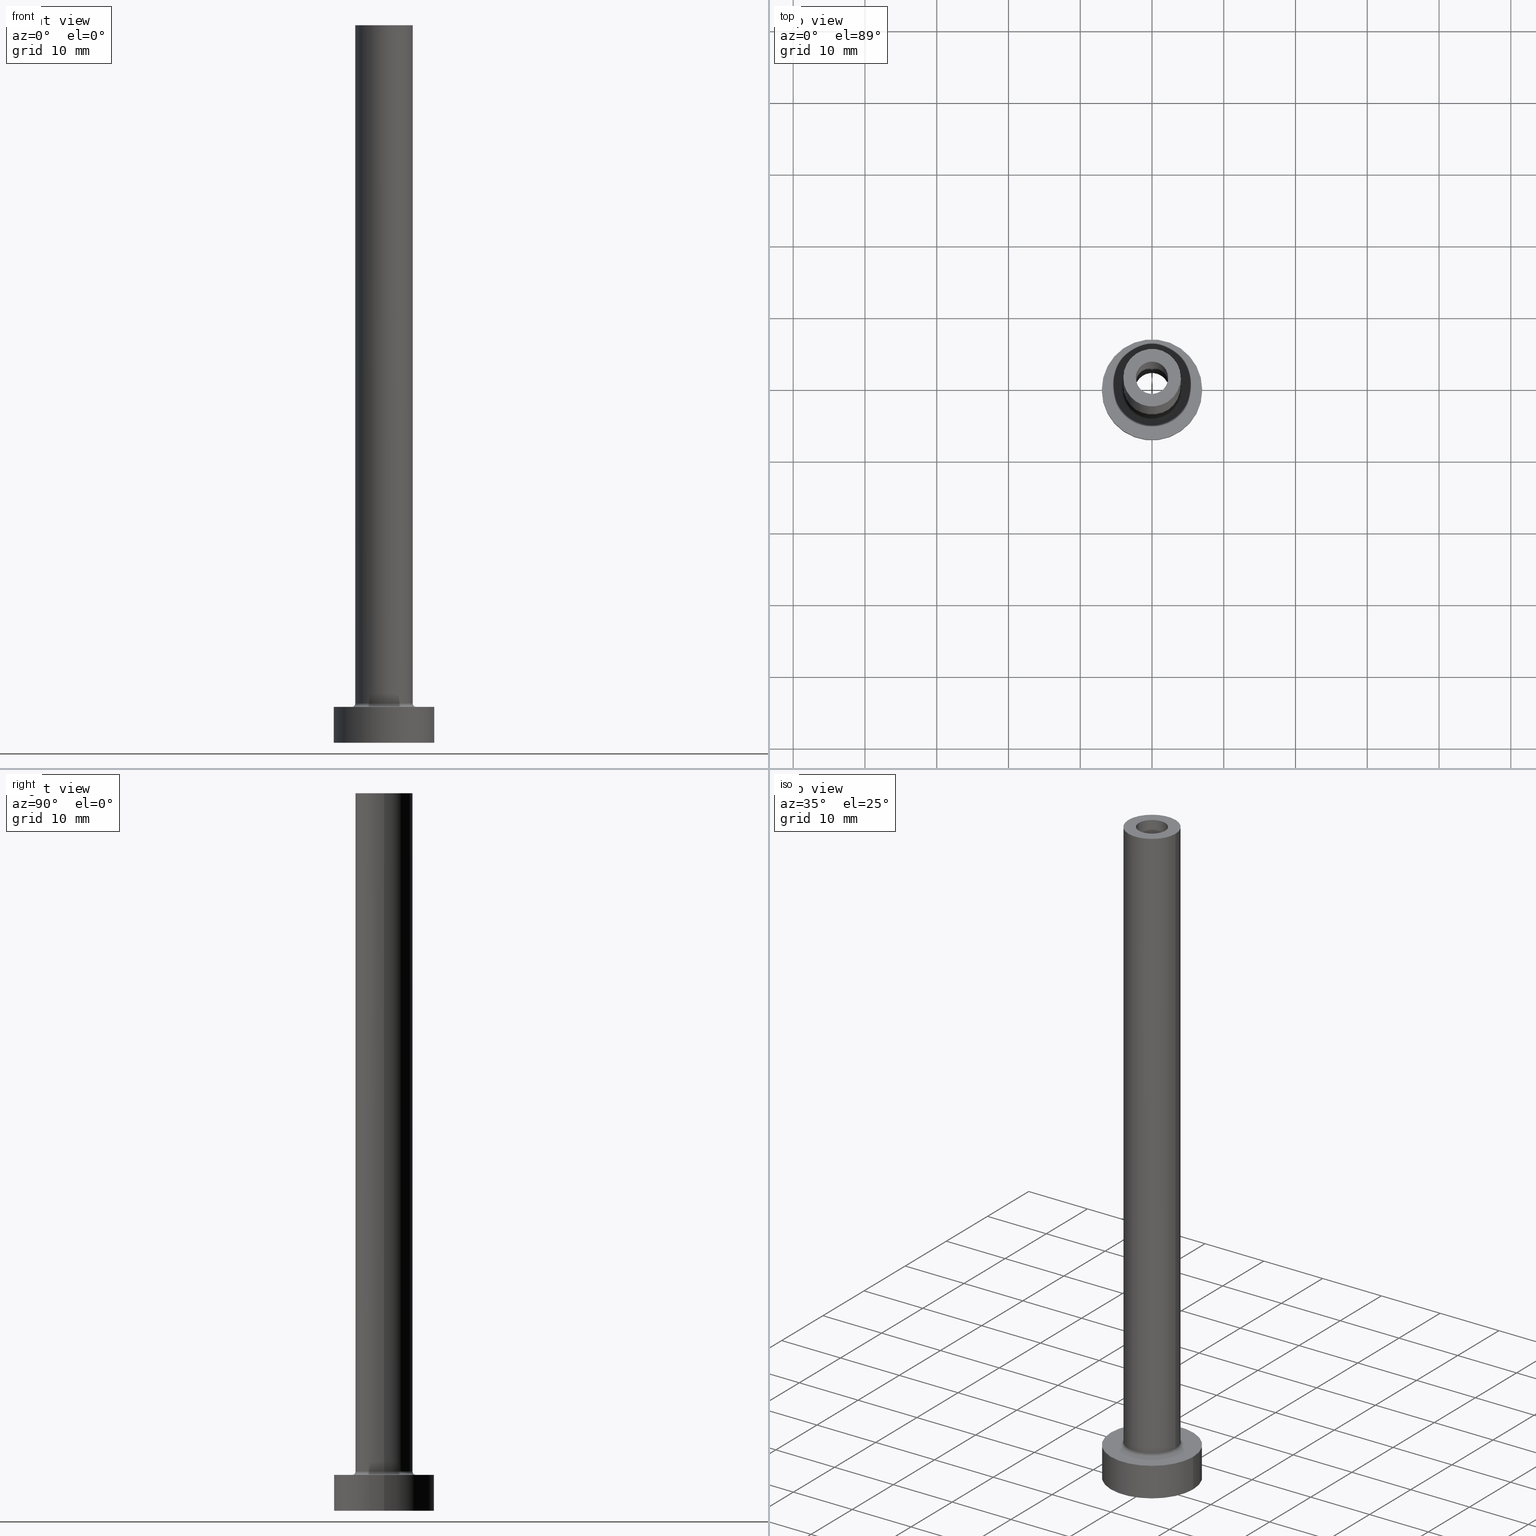
[diagram: canonical four-view strip — front | top / right | iso, engineering-drawing reading convention]
A machine part, canonical four-view strip (front | top / right | iso — engineering-drawing reading convention). The complete STEP part file that produces these views, byte-faithful:
ISO-10303-21;
HEADER;
FILE_DESCRIPTION (( 'STEP AP203' ),
    '1' );
FILE_NAME ('b994.STEP',
    '2023-02-13T11:05:56',
    ( '' ),
    ( '' ),
    'SwSTEP 2.0',
    'SolidWorks 2019',
    '' );
FILE_SCHEMA (( 'CONFIG_CONTROL_DESIGN' ));
ENDSEC;

DATA;
#1 = CYLINDRICAL_SURFACE ( 'NONE', #307, 4.000000000000000000 ) ;
#2 = ORIENTED_EDGE ( 'NONE', *, *, #439, .F. ) ;
#3 = CIRCLE ( 'NONE', #44, 0.5000000000000004441 ) ;
#4 = DIRECTION ( 'NONE',  ( -1.000000000000000000, 0.000000000000000000, 0.000000000000000000 ) ) ;
#5 = CC_DESIGN_APPROVAL ( #46, ( #11 ) ) ;
#6 = CALENDAR_DATE ( 2023, 13, 2 ) ;
#7 = DIRECTION ( 'NONE',  ( 0.000000000000000000, 0.000000000000000000, -1.000000000000000000 ) ) ;
#8 = ORIENTED_EDGE ( 'NONE', *, *, #27, .T. ) ;
#9 = DATE_TIME_ROLE ( 'classification_date' ) ;
#10 = CARTESIAN_POINT ( 'NONE',  ( 0.000000000000000000, 0.000000000000000000, 100.0000000000000000 ) ) ;
#11 = PRODUCT_DEFINITION ( 'NEZN�M�', '', #418, #207 ) ;
#12 = DIRECTION ( 'NONE',  ( 1.000000000000000000, 0.000000000000000000, 0.000000000000000000 ) ) ;
#13 = CIRCLE ( 'NONE', #191, 2.399999999999999911 ) ;
#14 = CARTESIAN_POINT ( 'NONE',  ( 0.000000000000000000, 0.000000000000000000, 5.500000000000005329 ) ) ;
#15 = ORIENTED_EDGE ( 'NONE', *, *, #272, .T. ) ;
#16 = DIRECTION ( 'NONE',  ( 0.000000000000000000, 0.000000000000000000, 1.000000000000000000 ) ) ;
#17 = CARTESIAN_POINT ( 'NONE',  ( 0.000000000000000000, 0.000000000000000000, 0.000000000000000000 ) ) ;
#18 = LOCAL_TIME ( 12, 5, 56.00000000000000000, #325 ) ;
#19 = CARTESIAN_POINT ( 'NONE',  ( -2.250000000000000000, 0.000000000000000000, 100.0000000000000000 ) ) ;
#20 = DIRECTION ( 'NONE',  ( 1.000000000000000000, 0.000000000000000000, 0.000000000000000000 ) ) ;
#21 = EDGE_CURVE ( 'NONE', #62, #374, #340, .T. ) ;
#22 = PRODUCT_RELATED_PRODUCT_CATEGORY ( 'detail', '', ( #294 ) ) ;
#23 = CLOSED_SHELL ( 'NONE', ( #332, #110, #88, #174, #35, #269, #54, #417, #101, #141, #412, #197, #91, #233 ) ) ;
#24 = DIRECTION ( 'NONE',  ( 1.000000000000000000, 0.000000000000000000, -0.000000000000000000 ) ) ;
#25 = VECTOR ( 'NONE', #257, 1000.000000000000000 ) ;
#26 = APPROVAL_ROLE ( '' ) ;
#27 = EDGE_CURVE ( 'NONE', #387, #179, #53, .T. ) ;
#28 = CIRCLE ( 'NONE', #68, 4.000000000000000000 ) ;
#29 = DIRECTION ( 'NONE',  ( 1.000000000000000000, 0.000000000000000000, -0.000000000000000000 ) ) ;
#30 = EDGE_CURVE ( 'NONE', #374, #204, #95, .T. ) ;
#31 = DIRECTION ( 'NONE',  ( 0.000000000000000000, 0.000000000000000000, 1.000000000000000000 ) ) ;
#32 = ORIENTED_EDGE ( 'NONE', *, *, #220, .F. ) ;
#33 = DIRECTION ( 'NONE',  ( -0.000000000000000000, -0.000000000000000000, -1.000000000000000000 ) ) ;
#34 = ORIENTED_EDGE ( 'NONE', *, *, #296, .F. ) ;
#35 = ADVANCED_FACE ( 'NONE', ( #309 ), #134, .T. ) ;
#36 = CARTESIAN_POINT ( 'NONE',  ( 0.000000000000000000, 0.000000000000000000, 61.78822509939085705 ) ) ;
#37 = CIRCLE ( 'NONE', #162, 2.399999999999999911 ) ;
#38 = EDGE_LOOP ( 'NONE', ( #434, #153, #367, #431 ) ) ;
#39 = DIRECTION ( 'NONE',  ( 0.000000000000000000, 0.000000000000000000, 1.000000000000000000 ) ) ;
#40 = ORIENTED_EDGE ( 'NONE', *, *, #357, .T. ) ;
#41 = LINE ( 'NONE', #155, #81 ) ;
#42 = EDGE_LOOP ( 'NONE', ( #347, #218, #15, #359 ) ) ;
#43 = CARTESIAN_POINT ( 'NONE',  ( 2.250000000000000000, 2.755455298081543792E-16, 100.0000000000000000 ) ) ;
#44 = AXIS2_PLACEMENT_3D ( 'NONE', #289, #182, #223 ) ;
#45 = LINE ( 'NONE', #43, #128 ) ;
#46 = APPROVAL ( #142, 'NEUR�EN�' ) ;
#47 = DIRECTION ( 'NONE',  ( 0.000000000000000000, 0.000000000000000000, 1.000000000000000000 ) ) ;
#48 = DIRECTION ( 'NONE',  ( -1.000000000000000000, 0.000000000000000000, 0.000000000000000000 ) ) ;
#49 = EDGE_CURVE ( 'NONE', #323, #456, #178, .T. ) ;
#50 = DIRECTION ( 'NONE',  ( 1.000000000000000000, 0.000000000000000000, 0.000000000000000000 ) ) ;
#51 = ORIENTED_EDGE ( 'NONE', *, *, #77, .T. ) ;
#52 = DIRECTION ( 'NONE',  ( 1.000000000000000000, 0.000000000000000000, 0.000000000000000000 ) ) ;
#53 = CIRCLE ( 'NONE', #321, 7.000000000000000000 ) ;
#54 = ADVANCED_FACE ( 'NONE', ( #415, #393 ), #143, .T. ) ;
#55 = CARTESIAN_POINT ( 'NONE',  ( 0.000000000000000000, 0.000000000000000000, 100.0000000000000000 ) ) ;
#56 = EDGE_CURVE ( 'NONE', #160, #135, #194, .T. ) ;
#57 = AXIS2_PLACEMENT_3D ( 'NONE', #213, #355, #452 ) ;
#58 = DIRECTION ( 'NONE',  ( 1.000000000000000000, 0.000000000000000000, -0.000000000000000000 ) ) ;
#59 = ORIENTED_EDGE ( 'NONE', *, *, #291, .T. ) ;
#60 = DATE_AND_TIME ( #380, #249 ) ;
#61 = CARTESIAN_POINT ( 'NONE',  ( 0.000000000000000000, 0.000000000000000000, 5.500000000000005329 ) ) ;
#62 = VERTEX_POINT ( 'NONE', #426 ) ;
#63 = PERSON_AND_ORGANIZATION_ROLE ( 'creator' ) ;
#64 = PLANE ( 'NONE',  #201 ) ;
#65 = EDGE_LOOP ( 'NONE', ( #394, #71, #105, #373 ) ) ;
#66 = CC_DESIGN_APPROVAL ( #365, ( #418 ) ) ;
#67 = DIRECTION ( 'NONE',  ( 0.000000000000000000, 0.000000000000000000, 1.000000000000000000 ) ) ;
#68 = AXIS2_PLACEMENT_3D ( 'NONE', #326, #217, #154 ) ;
#69 = ORIENTED_EDGE ( 'NONE', *, *, #296, .T. ) ;
#70 = DIRECTION ( 'NONE',  ( 0.000000000000000000, 0.000000000000000000, 1.000000000000000000 ) ) ;
#71 = ORIENTED_EDGE ( 'NONE', *, *, #402, .T. ) ;
#72 = EDGE_CURVE ( 'NONE', #238, #312, #398, .T. ) ;
#73 = CARTESIAN_POINT ( 'NONE',  ( 2.399999999999999911, 2.939152317953647106E-16, 0.000000000000000000 ) ) ;
#74 = DATE_AND_TIME ( #6, #343 ) ;
#75 = DIRECTION ( 'NONE',  ( 0.000000000000000000, 0.000000000000000000, 1.000000000000000000 ) ) ;
#76 = CARTESIAN_POINT ( 'NONE',  ( 7.000000000000000000, 8.572527594031473190E-16, 5.000000000000000000 ) ) ;
#77 = EDGE_CURVE ( 'NONE', #135, #160, #171, .T. ) ;
#78 = DIRECTION ( 'NONE',  ( -1.000000000000000000, 0.000000000000000000, 0.000000000000000000 ) ) ;
#79 = CC_DESIGN_PERSON_AND_ORGANIZATION_ASSIGNMENT ( #254, #107, ( #140 ) ) ;
#80 = DIRECTION ( 'NONE',  ( 1.000000000000000000, 0.000000000000000000, 0.000000000000000000 ) ) ;
#81 = VECTOR ( 'NONE', #120, 1000.000000000000000 ) ;
#82 = ORIENTED_EDGE ( 'NONE', *, *, #391, .T. ) ;
#83 = AXIS2_PLACEMENT_3D ( 'NONE', #304, #263, #334 ) ;
#84 = DIRECTION ( 'NONE',  ( 0.000000000000000000, 0.000000000000000000, -1.000000000000000000 ) ) ;
#85 = ORIENTED_EDGE ( 'NONE', *, *, #278, .T. ) ;
#86 = ORIENTED_EDGE ( 'NONE', *, *, #357, .F. ) ;
#87 = DIRECTION ( 'NONE',  ( 0.000000000000000000, 0.000000000000000000, 1.000000000000000000 ) ) ;
#88 = ADVANCED_FACE ( 'NONE', ( #311 ), #410, .F. ) ;
#89 = AXIS2_PLACEMENT_3D ( 'NONE', #447, #129, #370 ) ;
#90 = DIRECTION ( 'NONE',  ( -0.000000000000000000, -0.000000000000000000, -1.000000000000000000 ) ) ;
#91 = ADVANCED_FACE ( 'NONE', ( #313, #422 ), #169, .F. ) ;
#92 = EDGE_CURVE ( 'NONE', #248, #280, #222, .T. ) ;
#93 = AXIS2_PLACEMENT_3D ( 'NONE', #55, #196, #20 ) ;
#94 = PERSON_AND_ORGANIZATION ( #259, #227 ) ;
#95 = LINE ( 'NONE', #206, #123 ) ;
#96 = ORIENTED_EDGE ( 'NONE', *, *, #56, .T. ) ;
#97 = VECTOR ( 'NONE', #84, 1000.000000000000000 ) ;
#98 = CARTESIAN_POINT ( 'NONE',  ( 4.000000000000000000, 4.898587196589412829E-16, 100.0000000000000000 ) ) ;
#99 = EDGE_LOOP ( 'NONE', ( #214, #242 ) ) ;
#100 = PERSON_AND_ORGANIZATION ( #259, #227 ) ;
#101 = ADVANCED_FACE ( 'NONE', ( #276 ), #1, .T. ) ;
#102 = DIRECTION ( 'NONE',  ( 0.000000000000000000, 0.000000000000000000, -1.000000000000000000 ) ) ;
#103 = EDGE_LOOP ( 'NONE', ( #320, #382, #181, #32 ) ) ;
#104 = PERSON_AND_ORGANIZATION ( #259, #227 ) ;
#105 = ORIENTED_EDGE ( 'NONE', *, *, #210, .T. ) ;
#106 = UNCERTAINTY_MEASURE_WITH_UNIT (LENGTH_MEASURE( 1.000000000000000082E-05 ), #448, 'distance_accuracy_value', 'NONE');
#107 = PERSON_AND_ORGANIZATION_ROLE ( 'classification_officer' ) ;
#108 = CARTESIAN_POINT ( 'NONE',  ( 0.000000000000000000, 0.000000000000000000, 100.0000000000000000 ) ) ;
#109 = ORIENTED_EDGE ( 'NONE', *, *, #457, .T. ) ;
#110 = ADVANCED_FACE ( 'NONE', ( #145 ), #419, .F. ) ;
#111 = CARTESIAN_POINT ( 'NONE',  ( 4.500000000000000888, 0.000000000000000000, 5.000000000000002665 ) ) ;
#112 = ORIENTED_EDGE ( 'NONE', *, *, #30, .T. ) ;
#113 = CC_DESIGN_PERSON_AND_ORGANIZATION_ASSIGNMENT ( #389, #282, ( #418 ) ) ;
#114 = AXIS2_PLACEMENT_3D ( 'NONE', #279, #385, #381 ) ;
#115 = CARTESIAN_POINT ( 'NONE',  ( -4.000000000000000000, 0.000000000000000000, 5.500000000000005329 ) ) ;
#116 = EDGE_LOOP ( 'NONE', ( #328, #209, #112, #130 ) ) ;
#117 = EDGE_CURVE ( 'NONE', #290, #323, #287, .T. ) ;
#118 = CARTESIAN_POINT ( 'NONE',  ( -4.000000000000000000, 0.000000000000000000, 100.0000000000000000 ) ) ;
#119 = AXIS2_PLACEMENT_3D ( 'NONE', #268, #87, #408 ) ;
#120 = DIRECTION ( 'NONE',  ( -0.000000000000000000, -0.000000000000000000, -1.000000000000000000 ) ) ;
#121 = ORIENTED_EDGE ( 'NONE', *, *, #27, .F. ) ;
#122 = CARTESIAN_POINT ( 'NONE',  ( 2.250000000000000000, 2.755455298081543792E-16, 55.00000000000000711 ) ) ;
#123 = VECTOR ( 'NONE', #245, 1000.000000000000000 ) ;
#124 = DIRECTION ( 'NONE',  ( 0.000000000000000000, 0.000000000000000000, 1.000000000000000000 ) ) ;
#125 = AXIS2_PLACEMENT_3D ( 'NONE', #358, #47, #12 ) ;
#126 = ORIENTED_EDGE ( 'NONE', *, *, #72, .F. ) ;
#127 = CC_DESIGN_APPROVAL ( #228, ( #140 ) ) ;
#128 = VECTOR ( 'NONE', #253, 1000.000000000000000 ) ;
#129 = DIRECTION ( 'NONE',  ( 0.000000000000000000, 0.000000000000000000, 1.000000000000000000 ) ) ;
#130 = ORIENTED_EDGE ( 'NONE', *, *, #391, .F. ) ;
#131 = AXIS2_PLACEMENT_3D ( 'NONE', #61, #31, #349 ) ;
#132 = LINE ( 'NONE', #226, #97 ) ;
#133 = DATE_AND_TIME ( #451, #264 ) ;
#134 = CYLINDRICAL_SURFACE ( 'NONE', #274, 7.000000000000000000 ) ;
#135 = VERTEX_POINT ( 'NONE', #246 ) ;
#136 = AXIS2_PLACEMENT_3D ( 'NONE', #180, #424, #58 ) ;
#137 = APPROVAL_STATUS ( 'not_yet_approved' ) ;
#138 = DIRECTION ( 'NONE',  ( 1.000000000000000000, 0.000000000000000000, 0.000000000000000000 ) ) ;
#139 = ORIENTED_EDGE ( 'NONE', *, *, #210, .F. ) ;
#140 = SECURITY_CLASSIFICATION ( '', '', #329 ) ;
#141 = ADVANCED_FACE ( 'NONE', ( #251, #200 ), #64, .T. ) ;
#142 = APPROVAL_STATUS ( 'not_yet_approved' ) ;
#143 = PLANE ( 'NONE',  #136 ) ;
#144 = VERTEX_POINT ( 'NONE', #122 ) ;
#145 = FACE_OUTER_BOUND ( 'NONE', #65, .T. ) ;
#146 = VERTEX_POINT ( 'NONE', #115 ) ;
#147 = DIRECTION ( 'NONE',  ( 1.000000000000000000, 0.000000000000000000, -0.000000000000000000 ) ) ;
#148 = EDGE_LOOP ( 'NONE', ( #183, #85 ) ) ;
#149 = AXIS2_PLACEMENT_3D ( 'NONE', #195, #16, #80 ) ;
#150 = DIRECTION ( 'NONE',  ( 1.000000000000000000, 0.000000000000000000, 0.000000000000000000 ) ) ;
#151 = CIRCLE ( 'NONE', #261, 0.5000000000000004441 ) ;
#152 = EDGE_CURVE ( 'NONE', #135, #387, #41, .T. ) ;
#153 = ORIENTED_EDGE ( 'NONE', *, *, #272, .F. ) ;
#154 = DIRECTION ( 'NONE',  ( 1.000000000000000000, 0.000000000000000000, 0.000000000000000000 ) ) ;
#155 = CARTESIAN_POINT ( 'NONE',  ( -7.000000000000000000, 0.000000000000000000, 5.000000000000000000 ) ) ;
#156 = DIRECTION ( 'NONE',  ( -1.000000000000000000, 1.224646799147351482E-16, 0.000000000000000000 ) ) ;
#157 = AXIS2_PLACEMENT_3D ( 'NONE', #396, #322, #4 ) ;
#158 = CARTESIAN_POINT ( 'NONE',  ( 0.000000000000000000, 0.000000000000000000, 100.0000000000000000 ) ) ;
#159 = CARTESIAN_POINT ( 'NONE',  ( 2.399999999999999911, 2.939152317953647106E-16, 55.00000000000000711 ) ) ;
#160 = VERTEX_POINT ( 'NONE', #76 ) ;
#161 = LINE ( 'NONE', #372, #270 ) ;
#162 = AXIS2_PLACEMENT_3D ( 'NONE', #364, #360, #150 ) ;
#163 = DIRECTION ( 'NONE',  ( 0.000000000000000000, 0.000000000000000000, -1.000000000000000000 ) ) ;
#164 = DIRECTION ( 'NONE',  ( 0.000000000000000000, 0.000000000000000000, 1.000000000000000000 ) ) ;
#165 = ADVANCED_BREP_SHAPE_REPRESENTATION ( 'b994', ( #435, #368 ), #250 ) ;
#166 = CIRCLE ( 'NONE', #414, 4.000000000000000000 ) ;
#167 = CALENDAR_DATE ( 2023, 13, 2 ) ;
#168 = CARTESIAN_POINT ( 'NONE',  ( 0.000000000000000000, 0.000000000000000000, 100.0000000000000000 ) ) ;
#169 = PLANE ( 'NONE',  #386 ) ;
#170 = ORIENTED_EDGE ( 'NONE', *, *, #363, .T. ) ;
#171 = CIRCLE ( 'NONE', #350, 7.000000000000000000 ) ;
#172 = DIRECTION ( 'NONE',  ( -1.000000000000000000, 0.000000000000000000, 0.000000000000000000 ) ) ;
#173 = ORIENTED_EDGE ( 'NONE', *, *, #49, .F. ) ;
#174 = ADVANCED_FACE ( 'NONE', ( #298 ), #189, .T. ) ;
#175 = APPROVAL_DATE_TIME ( #74, #228 ) ;
#176 = AXIS2_PLACEMENT_3D ( 'NONE', #369, #164, #24 ) ;
#177 = DIRECTION ( 'NONE',  ( 0.000000000000000000, 0.000000000000000000, 1.000000000000000000 ) ) ;
#178 = LINE ( 'NONE', #98, #335 ) ;
#179 = VERTEX_POINT ( 'NONE', #331 ) ;
#180 = CARTESIAN_POINT ( 'NONE',  ( 0.000000000000000000, 0.000000000000000000, 5.000000000000000000 ) ) ;
#181 = ORIENTED_EDGE ( 'NONE', *, *, #92, .F. ) ;
#182 = DIRECTION ( 'NONE',  ( 0.000000000000000000, -1.000000000000000000, 0.000000000000000000 ) ) ;
#183 = ORIENTED_EDGE ( 'NONE', *, *, #117, .T. ) ;
#184 = LINE ( 'NONE', #118, #25 ) ;
#185 = CALENDAR_DATE ( 2023, 13, 2 ) ;
#186 = CARTESIAN_POINT ( 'NONE',  ( -4.000000000000000000, 0.000000000000000000, 100.0000000000000000 ) ) ;
#187 = ORIENTED_EDGE ( 'NONE', *, *, #337, .F. ) ;
#188 = EDGE_CURVE ( 'NONE', #280, #248, #354, .T. ) ;
#189 = CYLINDRICAL_SURFACE ( 'NONE', #345, 4.000000000000000000 ) ;
#190 = FACE_OUTER_BOUND ( 'NONE', #442, .T. ) ;
#191 = AXIS2_PLACEMENT_3D ( 'NONE', #17, #90, #50 ) ;
#192 = ORIENTED_EDGE ( 'NONE', *, *, #363, .F. ) ;
#193 = LINE ( 'NONE', #411, #405 ) ;
#194 = CIRCLE ( 'NONE', #114, 7.000000000000000000 ) ;
#195 = CARTESIAN_POINT ( 'NONE',  ( 0.000000000000000000, 0.000000000000000000, 55.00000000000000711 ) ) ;
#196 = DIRECTION ( 'NONE',  ( 0.000000000000000000, 0.000000000000000000, 1.000000000000000000 ) ) ;
#197 = ADVANCED_FACE ( 'NONE', ( #258 ), #215, .F. ) ;
#198 = CARTESIAN_POINT ( 'NONE',  ( 4.000000000000000000, 4.898587196589412829E-16, 100.0000000000000000 ) ) ;
#199 = APPLICATION_PROTOCOL_DEFINITION ( 'international standard', 'config_control_design', 1994, #236 ) ;
#200 = FACE_OUTER_BOUND ( 'NONE', #148, .T. ) ;
#201 = AXIS2_PLACEMENT_3D ( 'NONE', #208, #283, #147 ) ;
#202 = AXIS2_PLACEMENT_3D ( 'NONE', #432, #366, #48 ) ;
#203 = DIRECTION ( 'NONE',  ( 1.000000000000000000, 0.000000000000000000, 0.000000000000000000 ) ) ;
#204 = VERTEX_POINT ( 'NONE', #221 ) ;
#205 = PERSON_AND_ORGANIZATION ( #259, #227 ) ;
#206 = CARTESIAN_POINT ( 'NONE',  ( -2.250000000000000000, 0.000000000000000000, 100.0000000000000000 ) ) ;
#207 = DESIGN_CONTEXT ( 'detailed design', #236, 'design' ) ;
#208 = CARTESIAN_POINT ( 'NONE',  ( 0.000000000000000000, 0.000000000000000000, 100.0000000000000000 ) ) ;
#209 = ORIENTED_EDGE ( 'NONE', *, *, #21, .T. ) ;
#210 = EDGE_CURVE ( 'NONE', #230, #266, #37, .T. ) ;
#211 = CC_DESIGN_SECURITY_CLASSIFICATION ( #140, ( #418 ) ) ;
#212 = AXIS2_PLACEMENT_3D ( 'NONE', #444, #124, #52 ) ;
#213 = CARTESIAN_POINT ( 'NONE',  ( 0.000000000000000000, 0.000000000000000000, 5.000000000000000000 ) ) ;
#214 = ORIENTED_EDGE ( 'NONE', *, *, #92, .T. ) ;
#215 = CYLINDRICAL_SURFACE ( 'NONE', #324, 2.399999999999999911 ) ;
#216 = EDGE_LOOP ( 'NONE', ( #40, #416, #303, #271 ) ) ;
#217 = DIRECTION ( 'NONE',  ( 0.000000000000000000, 0.000000000000000000, 1.000000000000000000 ) ) ;
#218 = ORIENTED_EDGE ( 'NONE', *, *, #49, .T. ) ;
#219 = CYLINDRICAL_SURFACE ( 'NONE', #157, 7.000000000000000000 ) ;
#220 = EDGE_CURVE ( 'NONE', #456, #248, #3, .T. ) ;
#221 = CARTESIAN_POINT ( 'NONE',  ( -2.250000000000000000, 0.000000000000000000, 55.00000000000000711 ) ) ;
#222 = CIRCLE ( 'NONE', #57, 4.500000000000000888 ) ;
#223 = DIRECTION ( 'NONE',  ( 0.000000000000000000, 0.000000000000000000, -1.000000000000000000 ) ) ;
#224 = EDGE_CURVE ( 'NONE', #290, #146, #184, .T. ) ;
#225 = AXIS2_PLACEMENT_3D ( 'NONE', #10, #75, #333 ) ;
#226 = CARTESIAN_POINT ( 'NONE',  ( 2.399999999999999911, 2.939152317953647106E-16, 61.78822509939085705 ) ) ;
#227 = ORGANIZATION ( 'NEUR�EN�', 'NEUR�EN�', '' ) ;
#228 = APPROVAL ( #395, 'NEUR�EN�' ) ;
#229 = FACE_OUTER_BOUND ( 'NONE', #38, .T. ) ;
#230 = VERTEX_POINT ( 'NONE', #73 ) ;
#231 = CARTESIAN_POINT ( 'NONE',  ( 0.000000000000000000, 0.000000000000000000, 100.0000000000000000 ) ) ;
#232 = FACE_OUTER_BOUND ( 'NONE', #216, .T. ) ;
#233 = ADVANCED_FACE ( 'NONE', ( #292 ), #430, .F. ) ;
#234 = CIRCLE ( 'NONE', #149, 2.250000000000000000 ) ;
#235 = ORIENTED_EDGE ( 'NONE', *, *, #117, .F. ) ;
#236 = APPLICATION_CONTEXT ( 'configuration controlled 3d designs of mechanical parts and assemblies' ) ;
#237 = PERSON_AND_ORGANIZATION_ROLE ( 'design_owner' ) ;
#238 = VERTEX_POINT ( 'NONE', #401 ) ;
#239 = APPROVAL_ROLE ( '' ) ;
#240 = CARTESIAN_POINT ( 'NONE',  ( 0.000000000000000000, 0.000000000000000000, 55.00000000000000711 ) ) ;
#241 = APPROVAL_PERSON_ORGANIZATION ( #94, #365, #239 ) ;
#242 = ORIENTED_EDGE ( 'NONE', *, *, #188, .T. ) ;
#243 = CIRCLE ( 'NONE', #212, 2.250000000000000000 ) ;
#244 = COORDINATED_UNIVERSAL_TIME_OFFSET ( 1, 0, .AHEAD. ) ;
#245 = DIRECTION ( 'NONE',  ( 0.000000000000000000, 0.000000000000000000, -1.000000000000000000 ) ) ;
#246 = CARTESIAN_POINT ( 'NONE',  ( -7.000000000000000000, 0.000000000000000000, 5.000000000000000000 ) ) ;
#247 = CARTESIAN_POINT ( 'NONE',  ( 0.000000000000000000, 0.000000000000000000, 5.000000000000000000 ) ) ;
#248 = VERTEX_POINT ( 'NONE', #111 ) ;
#249 = LOCAL_TIME ( 12, 5, 56.00000000000000000, #244 ) ;
#250 =( GEOMETRIC_REPRESENTATION_CONTEXT ( 3 ) GLOBAL_UNCERTAINTY_ASSIGNED_CONTEXT ( ( #106 ) ) GLOBAL_UNIT_ASSIGNED_CONTEXT ( ( #448, #265, #375 ) ) REPRESENTATION_CONTEXT ( 'NONE', 'WORKASPACE' ) );
#251 = FACE_BOUND ( 'NONE', #356, .T. ) ;
#252 = ORIENTED_EDGE ( 'NONE', *, *, #316, .T. ) ;
#253 = DIRECTION ( 'NONE',  ( 0.000000000000000000, 0.000000000000000000, -1.000000000000000000 ) ) ;
#254 = PERSON_AND_ORGANIZATION ( #259, #227 ) ;
#255 = CARTESIAN_POINT ( 'NONE',  ( 0.000000000000000000, 0.000000000000000000, 5.000000000000000000 ) ) ;
#256 = EDGE_CURVE ( 'NONE', #62, #144, #45, .T. ) ;
#257 = DIRECTION ( 'NONE',  ( -0.000000000000000000, -0.000000000000000000, -1.000000000000000000 ) ) ;
#258 = FACE_OUTER_BOUND ( 'NONE', #428, .T. ) ;
#259 = PERSON ( 'NEUR�EN�', 'NEUR�EN�', 'NEUR�EN�', ('NEUR�EN�'), ('NEUR�EN�'), ('NEUR�EN�') ) ;
#260 = DIRECTION ( 'NONE',  ( -0.000000000000000000, -0.000000000000000000, -1.000000000000000000 ) ) ;
#261 = AXIS2_PLACEMENT_3D ( 'NONE', #299, #293, #156 ) ;
#262 = PRODUCT_DEFINITION_SHAPE ( 'NONE', 'NONE',  #11 ) ;
#263 = DIRECTION ( 'NONE',  ( 0.000000000000000000, 0.000000000000000000, 1.000000000000000000 ) ) ;
#264 = LOCAL_TIME ( 12, 5, 56.00000000000000000, #449 ) ;
#265 =( NAMED_UNIT ( * ) PLANE_ANGLE_UNIT ( ) SI_UNIT ( $, .RADIAN. ) );
#266 = VERTEX_POINT ( 'NONE', #399 ) ;
#267 = PLANE ( 'NONE',  #176 ) ;
#268 = CARTESIAN_POINT ( 'NONE',  ( 0.000000000000000000, 0.000000000000000000, 0.000000000000000000 ) ) ;
#269 = ADVANCED_FACE ( 'NONE', ( #190 ), #219, .T. ) ;
#270 = VECTOR ( 'NONE', #163, 1000.000000000000000 ) ;
#271 = ORIENTED_EDGE ( 'NONE', *, *, #30, .F. ) ;
#272 = EDGE_CURVE ( 'NONE', #456, #146, #28, .T. ) ;
#273 = DIRECTION ( 'NONE',  ( -0.000000000000000000, -0.000000000000000000, -1.000000000000000000 ) ) ;
#274 = AXIS2_PLACEMENT_3D ( 'NONE', #455, #273, #344 ) ;
#275 = EDGE_LOOP ( 'NONE', ( #351, #453, #170, #286 ) ) ;
#276 = FACE_OUTER_BOUND ( 'NONE', #338, .T. ) ;
#277 = ORIENTED_EDGE ( 'NONE', *, *, #21, .F. ) ;
#278 = EDGE_CURVE ( 'NONE', #323, #290, #378, .T. ) ;
#279 = CARTESIAN_POINT ( 'NONE',  ( 0.000000000000000000, 0.000000000000000000, 5.000000000000000000 ) ) ;
#280 = VERTEX_POINT ( 'NONE', #362 ) ;
#281 = APPROVAL_ROLE ( '' ) ;
#282 = PERSON_AND_ORGANIZATION_ROLE ( 'creator' ) ;
#283 = DIRECTION ( 'NONE',  ( 0.000000000000000000, 0.000000000000000000, 1.000000000000000000 ) ) ;
#284 = EDGE_LOOP ( 'NONE', ( #2, #139 ) ) ;
#285 = DIRECTION ( 'NONE',  ( 1.000000000000000000, 0.000000000000000000, 0.000000000000000000 ) ) ;
#286 = ORIENTED_EDGE ( 'NONE', *, *, #152, .F. ) ;
#287 = CIRCLE ( 'NONE', #425, 4.000000000000000000 ) ;
#288 = APPROVAL_PERSON_ORGANIZATION ( #342, #46, #26 ) ;
#289 = CARTESIAN_POINT ( 'NONE',  ( 4.500000000000000888, 0.000000000000000000, 5.500000000000005329 ) ) ;
#290 = VERTEX_POINT ( 'NONE', #186 ) ;
#291 = EDGE_CURVE ( 'NONE', #146, #456, #166, .T. ) ;
#292 = FACE_OUTER_BOUND ( 'NONE', #116, .T. ) ;
#293 = DIRECTION ( 'NONE',  ( 1.224646799147353207E-16, 1.000000000000000000, -0.000000000000000000 ) ) ;
#294 = PRODUCT ( 'b994', 'b994', '', ( #454 ) ) ;
#295 = APPROVAL_PERSON_ORGANIZATION ( #458, #228, #281 ) ;
#296 = EDGE_CURVE ( 'NONE', #312, #238, #302, .T. ) ;
#297 = AXIS2_PLACEMENT_3D ( 'NONE', #255, #260, #438 ) ;
#298 = FACE_OUTER_BOUND ( 'NONE', #42, .T. ) ;
#299 = CARTESIAN_POINT ( 'NONE',  ( -4.500000000000000888, 5.510910596163089556E-16, 5.500000000000005329 ) ) ;
#300 = DIRECTION ( 'NONE',  ( -0.000000000000000000, -0.000000000000000000, -1.000000000000000000 ) ) ;
#301 = CARTESIAN_POINT ( 'NONE',  ( 4.000000000000000000, 4.898587196589412829E-16, 5.500000000000005329 ) ) ;
#302 = CIRCLE ( 'NONE', #125, 2.399999999999999911 ) ;
#303 = ORIENTED_EDGE ( 'NONE', *, *, #316, .F. ) ;
#304 = CARTESIAN_POINT ( 'NONE',  ( 0.000000000000000000, 0.000000000000000000, 5.500000000000005329 ) ) ;
#305 = CYLINDRICAL_SURFACE ( 'NONE', #443, 2.250000000000000000 ) ;
#306 = EDGE_CURVE ( 'NONE', #146, #280, #151, .T. ) ;
#307 = AXIS2_PLACEMENT_3D ( 'NONE', #108, #33, #319 ) ;
#308 = APPROVAL_DATE_TIME ( #384, #46 ) ;
#309 = FACE_OUTER_BOUND ( 'NONE', #275, .T. ) ;
#310 = COORDINATED_UNIVERSAL_TIME_OFFSET ( 1, 0, .AHEAD. ) ;
#311 = FACE_OUTER_BOUND ( 'NONE', #103, .T. ) ;
#312 = VERTEX_POINT ( 'NONE', #159 ) ;
#313 = FACE_BOUND ( 'NONE', #379, .T. ) ;
#314 = ORIENTED_EDGE ( 'NONE', *, *, #77, .F. ) ;
#315 = CIRCLE ( 'NONE', #119, 7.000000000000000000 ) ;
#316 = EDGE_CURVE ( 'NONE', #204, #144, #234, .T. ) ;
#317 = DATE_TIME_ROLE ( 'creation_date' ) ;
#318 = DIRECTION ( 'NONE',  ( -0.000000000000000000, -0.000000000000000000, -1.000000000000000000 ) ) ;
#319 = DIRECTION ( 'NONE',  ( -1.000000000000000000, 0.000000000000000000, 0.000000000000000000 ) ) ;
#320 = ORIENTED_EDGE ( 'NONE', *, *, #291, .F. ) ;
#321 = AXIS2_PLACEMENT_3D ( 'NONE', #450, #39, #352 ) ;
#322 = DIRECTION ( 'NONE',  ( -0.000000000000000000, -0.000000000000000000, -1.000000000000000000 ) ) ;
#323 = VERTEX_POINT ( 'NONE', #198 ) ;
#324 = AXIS2_PLACEMENT_3D ( 'NONE', #403, #7, #78 ) ;
#325 = COORDINATED_UNIVERSAL_TIME_OFFSET ( 1, 0, .AHEAD. ) ;
#326 = CARTESIAN_POINT ( 'NONE',  ( 0.000000000000000000, 0.000000000000000000, 5.500000000000005329 ) ) ;
#327 = CC_DESIGN_DATE_AND_TIME_ASSIGNMENT ( #133, #317, ( #11 ) ) ;
#328 = ORIENTED_EDGE ( 'NONE', *, *, #256, .F. ) ;
#329 = SECURITY_CLASSIFICATION_LEVEL ( 'unclassified' ) ;
#330 = DIRECTION ( 'NONE',  ( 1.000000000000000000, 0.000000000000000000, 0.000000000000000000 ) ) ;
#331 = CARTESIAN_POINT ( 'NONE',  ( 7.000000000000000000, 8.572527594031473190E-16, 0.000000000000000000 ) ) ;
#332 = ADVANCED_FACE ( 'NONE', ( #232 ), #305, .F. ) ;
#333 = DIRECTION ( 'NONE',  ( 1.000000000000000000, 0.000000000000000000, 0.000000000000000000 ) ) ;
#334 = DIRECTION ( 'NONE',  ( 1.000000000000000000, 0.000000000000000000, 0.000000000000000000 ) ) ;
#335 = VECTOR ( 'NONE', #318, 1000.000000000000000 ) ;
#336 = CARTESIAN_POINT ( 'NONE',  ( -7.000000000000000000, 0.000000000000000000, 0.000000000000000000 ) ) ;
#337 = EDGE_CURVE ( 'NONE', #160, #179, #193, .T. ) ;
#338 = EDGE_LOOP ( 'NONE', ( #173, #235, #423, #59 ) ) ;
#339 = DIRECTION ( 'NONE',  ( 0.000000000000000000, 0.000000000000000000, -1.000000000000000000 ) ) ;
#340 = CIRCLE ( 'NONE', #93, 2.250000000000000000 ) ;
#341 = EDGE_LOOP ( 'NONE', ( #121, #192 ) ) ;
#342 = PERSON_AND_ORGANIZATION ( #259, #227 ) ;
#343 = LOCAL_TIME ( 12, 5, 56.00000000000000000, #400 ) ;
#344 = DIRECTION ( 'NONE',  ( -1.000000000000000000, 0.000000000000000000, 0.000000000000000000 ) ) ;
#345 = AXIS2_PLACEMENT_3D ( 'NONE', #158, #437, #433 ) ;
#346 = DIRECTION ( 'NONE',  ( 0.000000000000000000, 0.000000000000000000, 1.000000000000000000 ) ) ;
#347 = ORIENTED_EDGE ( 'NONE', *, *, #278, .F. ) ;
#348 = APPROVAL_DATE_TIME ( #60, #365 ) ;
#349 = DIRECTION ( 'NONE',  ( 1.000000000000000000, 0.000000000000000000, 0.000000000000000000 ) ) ;
#350 = AXIS2_PLACEMENT_3D ( 'NONE', #247, #346, #138 ) ;
#351 = ORIENTED_EDGE ( 'NONE', *, *, #56, .F. ) ;
#352 = DIRECTION ( 'NONE',  ( 1.000000000000000000, 0.000000000000000000, 0.000000000000000000 ) ) ;
#353 = CC_DESIGN_PERSON_AND_ORGANIZATION_ASSIGNMENT ( #205, #237, ( #294 ) ) ;
#354 = CIRCLE ( 'NONE', #297, 4.500000000000000888 ) ;
#355 = DIRECTION ( 'NONE',  ( -0.000000000000000000, -0.000000000000000000, -1.000000000000000000 ) ) ;
#356 = EDGE_LOOP ( 'NONE', ( #86, #277 ) ) ;
#357 = EDGE_CURVE ( 'NONE', #374, #62, #429, .T. ) ;
#358 = CARTESIAN_POINT ( 'NONE',  ( 0.000000000000000000, 0.000000000000000000, 55.00000000000000711 ) ) ;
#359 = ORIENTED_EDGE ( 'NONE', *, *, #224, .F. ) ;
#360 = DIRECTION ( 'NONE',  ( -0.000000000000000000, -0.000000000000000000, -1.000000000000000000 ) ) ;
#361 = TOROIDAL_SURFACE ( 'NONE', #83, 4.500000000000000888, 0.5000000000000000000 ) ;
#362 = CARTESIAN_POINT ( 'NONE',  ( -4.500000000000000888, 5.510910596163088569E-16, 5.000000000000002665 ) ) ;
#363 = EDGE_CURVE ( 'NONE', #179, #387, #315, .T. ) ;
#364 = CARTESIAN_POINT ( 'NONE',  ( 0.000000000000000000, 0.000000000000000000, 0.000000000000000000 ) ) ;
#365 = APPROVAL ( #137, 'NEUR�EN�' ) ;
#366 = DIRECTION ( 'NONE',  ( 0.000000000000000000, 0.000000000000000000, -1.000000000000000000 ) ) ;
#367 = ORIENTED_EDGE ( 'NONE', *, *, #220, .T. ) ;
#368 = AXIS2_PLACEMENT_3D ( 'NONE', #461, #177, #376 ) ;
#369 = CARTESIAN_POINT ( 'NONE',  ( 0.000000000000000000, 0.000000000000000000, 0.000000000000000000 ) ) ;
#370 = DIRECTION ( 'NONE',  ( 1.000000000000000000, 0.000000000000000000, 0.000000000000000000 ) ) ;
#371 = AXIS2_PLACEMENT_3D ( 'NONE', #240, #377, #203 ) ;
#372 = CARTESIAN_POINT ( 'NONE',  ( -2.399999999999999911, 0.000000000000000000, 61.78822509939085705 ) ) ;
#373 = ORIENTED_EDGE ( 'NONE', *, *, #457, .F. ) ;
#374 = VERTEX_POINT ( 'NONE', #19 ) ;
#375 =( NAMED_UNIT ( * ) SI_UNIT ( $, .STERADIAN. ) SOLID_ANGLE_UNIT ( ) );
#376 = DIRECTION ( 'NONE',  ( 1.000000000000000000, 0.000000000000000000, 0.000000000000000000 ) ) ;
#377 = DIRECTION ( 'NONE',  ( 0.000000000000000000, 0.000000000000000000, 1.000000000000000000 ) ) ;
#378 = CIRCLE ( 'NONE', #225, 4.000000000000000000 ) ;
#379 = EDGE_LOOP ( 'NONE', ( #252, #82 ) ) ;
#380 = CALENDAR_DATE ( 2023, 13, 2 ) ;
#381 = DIRECTION ( 'NONE',  ( 1.000000000000000000, 0.000000000000000000, 0.000000000000000000 ) ) ;
#382 = ORIENTED_EDGE ( 'NONE', *, *, #306, .T. ) ;
#383 = PERSON_AND_ORGANIZATION_ROLE ( 'design_supplier' ) ;
#384 = DATE_AND_TIME ( #167, #406 ) ;
#385 = DIRECTION ( 'NONE',  ( 0.000000000000000000, 0.000000000000000000, 1.000000000000000000 ) ) ;
#386 = AXIS2_PLACEMENT_3D ( 'NONE', #390, #67, #29 ) ;
#387 = VERTEX_POINT ( 'NONE', #336 ) ;
#388 = DATE_AND_TIME ( #185, #18 ) ;
#389 = PERSON_AND_ORGANIZATION ( #259, #227 ) ;
#390 = CARTESIAN_POINT ( 'NONE',  ( 0.000000000000000000, 0.000000000000000000, 55.00000000000000711 ) ) ;
#391 = EDGE_CURVE ( 'NONE', #144, #204, #243, .T. ) ;
#392 = SHAPE_DEFINITION_REPRESENTATION ( #262, #165 ) ;
#393 = FACE_OUTER_BOUND ( 'NONE', #397, .T. ) ;
#394 = ORIENTED_EDGE ( 'NONE', *, *, #72, .T. ) ;
#395 = APPROVAL_STATUS ( 'not_yet_approved' ) ;
#396 = CARTESIAN_POINT ( 'NONE',  ( 0.000000000000000000, 0.000000000000000000, 5.000000000000000000 ) ) ;
#397 = EDGE_LOOP ( 'NONE', ( #51, #96 ) ) ;
#398 = CIRCLE ( 'NONE', #371, 2.399999999999999911 ) ;
#399 = CARTESIAN_POINT ( 'NONE',  ( -2.399999999999999911, 0.000000000000000000, 0.000000000000000000 ) ) ;
#400 = COORDINATED_UNIVERSAL_TIME_OFFSET ( 1, 0, .AHEAD. ) ;
#401 = CARTESIAN_POINT ( 'NONE',  ( -2.399999999999999911, 0.000000000000000000, 55.00000000000000711 ) ) ;
#402 = EDGE_CURVE ( 'NONE', #312, #230, #132, .T. ) ;
#403 = CARTESIAN_POINT ( 'NONE',  ( 0.000000000000000000, 0.000000000000000000, 61.78822509939085705 ) ) ;
#404 = APPLICATION_PROTOCOL_DEFINITION ( 'international standard', 'config_control_design', 1994, #440 ) ;
#405 = VECTOR ( 'NONE', #300, 1000.000000000000000 ) ;
#406 = LOCAL_TIME ( 12, 5, 56.00000000000000000, #310 ) ;
#407 = FACE_BOUND ( 'NONE', #284, .T. ) ;
#408 = DIRECTION ( 'NONE',  ( 1.000000000000000000, 0.000000000000000000, 0.000000000000000000 ) ) ;
#409 = ORIENTED_EDGE ( 'NONE', *, *, #402, .F. ) ;
#410 = TOROIDAL_SURFACE ( 'NONE', #131, 4.500000000000000888, 0.5000000000000000000 ) ;
#411 = CARTESIAN_POINT ( 'NONE',  ( 7.000000000000000000, 8.572527594031473190E-16, 5.000000000000000000 ) ) ;
#412 = ADVANCED_FACE ( 'NONE', ( #229 ), #361, .F. ) ;
#413 = FACE_OUTER_BOUND ( 'NONE', #341, .T. ) ;
#414 = AXIS2_PLACEMENT_3D ( 'NONE', #14, #70, #330 ) ;
#415 = FACE_BOUND ( 'NONE', #99, .T. ) ;
#416 = ORIENTED_EDGE ( 'NONE', *, *, #256, .T. ) ;
#417 = ADVANCED_FACE ( 'NONE', ( #407, #413 ), #267, .F. ) ;
#418 = PRODUCT_DEFINITION_FORMATION_WITH_SPECIFIED_SOURCE ( 'LIBOVOLN�', '', #294, .NOT_KNOWN. ) ;
#419 = CYLINDRICAL_SURFACE ( 'NONE', #436, 2.399999999999999911 ) ;
#420 = ORIENTED_EDGE ( 'NONE', *, *, #439, .T. ) ;
#421 = CC_DESIGN_DATE_AND_TIME_ASSIGNMENT ( #388, #9, ( #140 ) ) ;
#422 = FACE_OUTER_BOUND ( 'NONE', #460, .T. ) ;
#423 = ORIENTED_EDGE ( 'NONE', *, *, #224, .T. ) ;
#424 = DIRECTION ( 'NONE',  ( 0.000000000000000000, 0.000000000000000000, 1.000000000000000000 ) ) ;
#425 = AXIS2_PLACEMENT_3D ( 'NONE', #168, #459, #285 ) ;
#426 = CARTESIAN_POINT ( 'NONE',  ( 2.250000000000000000, 2.755455298081543792E-16, 100.0000000000000000 ) ) ;
#427 = CC_DESIGN_PERSON_AND_ORGANIZATION_ASSIGNMENT ( #104, #383, ( #418 ) ) ;
#428 = EDGE_LOOP ( 'NONE', ( #409, #69, #109, #420 ) ) ;
#429 = CIRCLE ( 'NONE', #89, 2.250000000000000000 ) ;
#430 = CYLINDRICAL_SURFACE ( 'NONE', #202, 2.250000000000000000 ) ;
#431 = ORIENTED_EDGE ( 'NONE', *, *, #188, .F. ) ;
#432 = CARTESIAN_POINT ( 'NONE',  ( 0.000000000000000000, 0.000000000000000000, 100.0000000000000000 ) ) ;
#433 = DIRECTION ( 'NONE',  ( -1.000000000000000000, 0.000000000000000000, 0.000000000000000000 ) ) ;
#434 = ORIENTED_EDGE ( 'NONE', *, *, #306, .F. ) ;
#435 = MANIFOLD_SOLID_BREP ( 'Odebrat vysunut�m4', #23 ) ;
#436 = AXIS2_PLACEMENT_3D ( 'NONE', #36, #102, #172 ) ;
#437 = DIRECTION ( 'NONE',  ( -0.000000000000000000, -0.000000000000000000, -1.000000000000000000 ) ) ;
#438 = DIRECTION ( 'NONE',  ( 1.000000000000000000, 0.000000000000000000, 0.000000000000000000 ) ) ;
#439 = EDGE_CURVE ( 'NONE', #266, #230, #13, .T. ) ;
#440 = APPLICATION_CONTEXT ( 'configuration controlled 3d designs of mechanical parts and assemblies' ) ;
#441 = DIRECTION ( 'NONE',  ( -1.000000000000000000, 0.000000000000000000, 0.000000000000000000 ) ) ;
#442 = EDGE_LOOP ( 'NONE', ( #187, #314, #445, #8 ) ) ;
#443 = AXIS2_PLACEMENT_3D ( 'NONE', #231, #339, #441 ) ;
#444 = CARTESIAN_POINT ( 'NONE',  ( 0.000000000000000000, 0.000000000000000000, 55.00000000000000711 ) ) ;
#445 = ORIENTED_EDGE ( 'NONE', *, *, #152, .T. ) ;
#446 = CC_DESIGN_PERSON_AND_ORGANIZATION_ASSIGNMENT ( #100, #63, ( #11 ) ) ;
#447 = CARTESIAN_POINT ( 'NONE',  ( 0.000000000000000000, 0.000000000000000000, 100.0000000000000000 ) ) ;
#448 =( LENGTH_UNIT ( ) NAMED_UNIT ( * ) SI_UNIT ( .MILLI., .METRE. ) );
#449 = COORDINATED_UNIVERSAL_TIME_OFFSET ( 1, 0, .AHEAD. ) ;
#450 = CARTESIAN_POINT ( 'NONE',  ( 0.000000000000000000, 0.000000000000000000, 0.000000000000000000 ) ) ;
#451 = CALENDAR_DATE ( 2023, 13, 2 ) ;
#452 = DIRECTION ( 'NONE',  ( 1.000000000000000000, 0.000000000000000000, 0.000000000000000000 ) ) ;
#453 = ORIENTED_EDGE ( 'NONE', *, *, #337, .T. ) ;
#454 = MECHANICAL_CONTEXT ( 'NONE', #440, 'mechanical' ) ;
#455 = CARTESIAN_POINT ( 'NONE',  ( 0.000000000000000000, 0.000000000000000000, 5.000000000000000000 ) ) ;
#456 = VERTEX_POINT ( 'NONE', #301 ) ;
#457 = EDGE_CURVE ( 'NONE', #238, #266, #161, .T. ) ;
#458 = PERSON_AND_ORGANIZATION ( #259, #227 ) ;
#459 = DIRECTION ( 'NONE',  ( 0.000000000000000000, 0.000000000000000000, 1.000000000000000000 ) ) ;
#460 = EDGE_LOOP ( 'NONE', ( #126, #34 ) ) ;
#461 = CARTESIAN_POINT ( 'NONE',  ( 0.000000000000000000, 0.000000000000000000, 0.000000000000000000 ) ) ;
ENDSEC;
END-ISO-10303-21;
